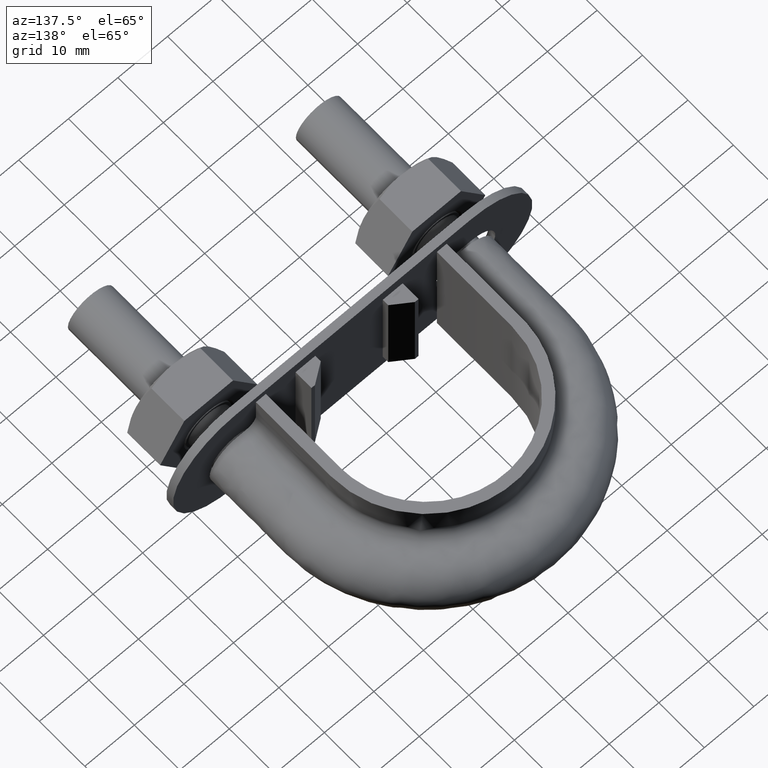
[diagram: clean part render]
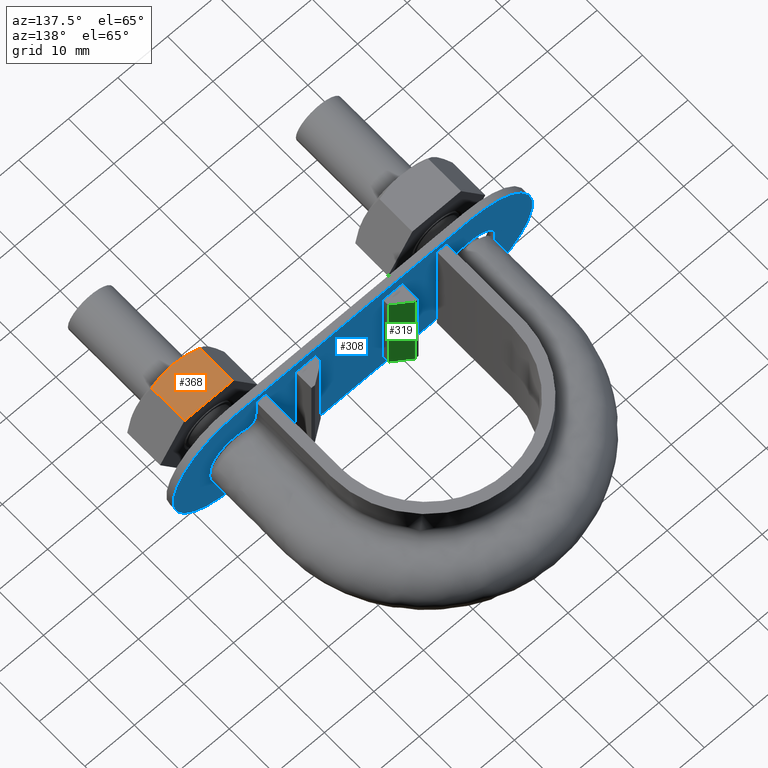
[diagram: same view with three faces highlighted in distinct colors, each labeled with its STEP entity id]
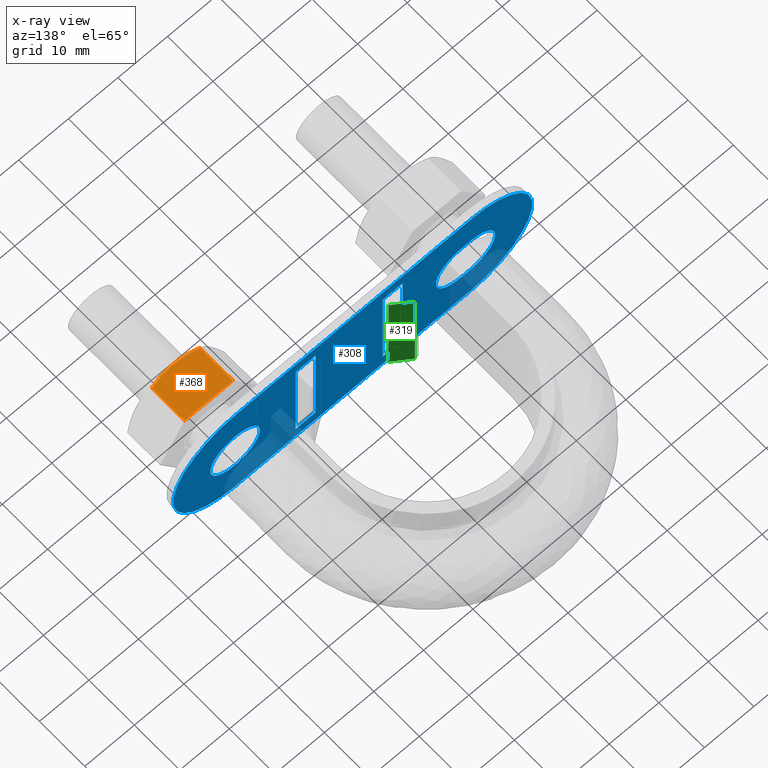
[diagram: x-ray of the same camera — body ghosted, the three highlighted faces saturated]
A machine part, auxiliary view with three faces highlighted in distinct colors.
The next image is the same camera in x-ray (body ghosted, the three faces saturated) — at least one of them is partly hidden behind the body in this view.
Their STEP definitions:

[orange] entity #368 — the highlighted planar face has unit normal (-0, 0, -1).
#368 = ADVANCED_FACE( '', ( #611 ), #612, .F. );
#611 = FACE_OUTER_BOUND( '', #1689, .T. );
#612 = PLANE( '', #1690 );
#1689 = EDGE_LOOP( '', ( #2445, #2446, #2447, #2448, #2449 ) );
#1690 = AXIS2_PLACEMENT_3D( '', #2450, #2451, #2452 );
#2445 = ORIENTED_EDGE( '', *, *, #2744, .F. );
#2446 = ORIENTED_EDGE( '', *, *, #2700, .F. );
#2447 = ORIENTED_EDGE( '', *, *, #2745, .F. );
#2448 = ORIENTED_EDGE( '', *, *, #2717, .F. );
#2449 = ORIENTED_EDGE( '', *, *, #2727, .F. );
#2450 = CARTESIAN_POINT( '', ( 18.0925227125984, 26.0000000000000, 8.50000000040994 ) );
#2451 = DIRECTION( '', ( -8.35309044156739E-011, 3.06151588476053E-016, -1.00000000000000 ) );
#2452 = DIRECTION( '', ( -1.00000000000000, 0.000000000000000, 8.35309044156739E-011 ) );
#2700 = EDGE_CURVE( '', #3053, #3056, #3057, .T. );
#2717 = EDGE_CURVE( '', #3086, #3088, #3089, .T. );
#2727 = EDGE_CURVE( '', #3105, #3086, #3107, .F. );
#2744 = EDGE_CURVE( '', #3056, #3105, #3132, .T. );
#2745 = EDGE_CURVE( '', #3088, #3053, #3133, .T. );
#3053 = VERTEX_POINT( '', #3779 );
#3056 = VERTEX_POINT( '', #3782 );
#3057 = B_SPLINE_CURVE_WITH_KNOTS( '', 3, ( #3783, #3784, #3785, #3786, #3787, #3788 ), .UNSPECIFIED., .F., .F., ( 4, 2, 4 ), ( 8.44152876808032E-017, 0.00246745482903600, 0.00493490965807192 ), .UNSPECIFIED. );
#3086 = VERTEX_POINT( '', #3841 );
#3088 = VERTEX_POINT( '', #3843 );
#3089 = LINE( '', #3844, #3845 );
#3105 = VERTEX_POINT( '', #3865 );
#3107 = LINE( '', #3867, #3868 );
#3132 = B_SPLINE_CURVE_WITH_KNOTS( '', 3, ( #3921, #3922, #3923, #3924, #3925, #3926 ), .UNSPECIFIED., .F., .F., ( 4, 2, 4 ), ( 6.93889390390723E-018, 0.00246745482903605, 0.00493490965807209 ), .UNSPECIFIED. );
#3133 = LINE( '', #3927, #3928 );
#3779 = CARTESIAN_POINT( '', ( 27.8774993600128, 18.7505553499468, 8.49999999959259 ) );
#3782 = CARTESIAN_POINT( '', ( 23.0000000007100, 18.0000000000003, 8.50000000000001 ) );
#3783 = CARTESIAN_POINT( '', ( 27.8774993600127, 18.7505553499468, 8.49999999959259 ) );
#3784 = CARTESIAN_POINT( '', ( 27.0805717073871, 18.5215585493659, 8.49999999965916 ) );
#3785 = CARTESIAN_POINT( '', ( 26.2774431763727, 18.3328582843709, 8.49999999972624 ) );
#3786 = CARTESIAN_POINT( '', ( 24.6533062483956, 18.0716504305293, 8.49999999986191 ) );
#3787 = CARTESIAN_POINT( '', ( 23.8321659509007, 18.0000000000003, 8.49999999993050 ) );
#3788 = CARTESIAN_POINT( '', ( 23.0000000007100, 18.0000000000003, 8.50000000000001 ) );
#3841 = CARTESIAN_POINT( '', ( 18.1225006414071, 26.0000000000000, 8.50000000040744 ) );
#3843 = CARTESIAN_POINT( '', ( 27.8774993600129, 26.0000000000000, 8.49999999959259 ) );
#3844 = CARTESIAN_POINT( '', ( 13.2000000007104, 26.0000000000000, 8.50000000081862 ) );
#3845 = VECTOR( '', #4230, 1000.00000000000 );
#3865 = CARTESIAN_POINT( '', ( 18.1225006414071, 18.7505553499468, 8.50000000040744 ) );
#3867 = CARTESIAN_POINT( '', ( 18.1225006414071, 26.0000000000000, 8.50000000040744 ) );
#3868 = VECTOR( '', #4250, 1000.00000000000 );
#3921 = CARTESIAN_POINT( '', ( 23.0000000007100, 18.0000000000003, 8.50000000000001 ) );
#3922 = CARTESIAN_POINT( '', ( 22.1678340505193, 18.0000000000003, 8.50000000006952 ) );
#3923 = CARTESIAN_POINT( '', ( 21.3466937530244, 18.0716504305293, 8.50000000013812 ) );
#3924 = CARTESIAN_POINT( '', ( 19.7225568250472, 18.3328582843710, 8.50000000027378 ) );
#3925 = CARTESIAN_POINT( '', ( 18.9194282940329, 18.5215585493659, 8.50000000034086 ) );
#3926 = CARTESIAN_POINT( '', ( 18.1225006414073, 18.7505553499468, 8.50000000040743 ) );
#3927 = CARTESIAN_POINT( '', ( 27.8774993600129, 26.0000000000000, 8.49999999959259 ) );
#3928 = VECTOR( '', #4278, 1000.00000000000 );
#4230 = DIRECTION( '', ( 1.00000000000000, -2.44921270738902E-016, -8.35309044156739E-011 ) );
#4250 = DIRECTION( '', ( -2.44921270764475E-016, -1.00000000000000, -3.06151588455595E-016 ) );
#4278 = DIRECTION( '', ( -2.44921270764475E-016, -1.00000000000000, -3.06151588455595E-016 ) );

[blue] entity #308 — the highlighted planar face has unit normal (0, 1, -0).
#308 = ADVANCED_FACE( '', ( #475, #476, #477, #478, #479 ), #480, .T. );
#475 = FACE_OUTER_BOUND( '', #1553, .T. );
#476 = FACE_BOUND( '', #1554, .T. );
#477 = FACE_BOUND( '', #1555, .T. );
#478 = FACE_BOUND( '', #1556, .T. );
#479 = FACE_BOUND( '', #1557, .T. );
#480 = PLANE( '', #1558 );
#1553 = EDGE_LOOP( '', ( #1992, #1993, #1994, #1995 ) );
#1554 = EDGE_LOOP( '', ( #1996, #1997, #1998, #1999 ) );
#1555 = EDGE_LOOP( '', ( #2000 ) );
#1556 = EDGE_LOOP( '', ( #2001, #2002, #2003, #2004 ) );
#1557 = EDGE_LOOP( '', ( #2005, #2006, #2007, #2008 ) );
#1558 = AXIS2_PLACEMENT_3D( '', #2009, #2010, #2011 );
#1992 = ORIENTED_EDGE( '', *, *, #2603, .T. );
#1993 = ORIENTED_EDGE( '', *, *, #2582, .T. );
#1994 = ORIENTED_EDGE( '', *, *, #2602, .T. );
#1995 = ORIENTED_EDGE( '', *, *, #2604, .T. );
#1996 = ORIENTED_EDGE( '', *, *, #2605, .T. );
#1997 = ORIENTED_EDGE( '', *, *, #2606, .T. );
#1998 = ORIENTED_EDGE( '', *, *, #2607, .F. );
#1999 = ORIENTED_EDGE( '', *, *, #2608, .F. );
#2000 = ORIENTED_EDGE( '', *, *, #2609, .F. );
#2001 = ORIENTED_EDGE( '', *, *, #2610, .F. );
#2002 = ORIENTED_EDGE( '', *, *, #2611, .F. );
#2003 = ORIENTED_EDGE( '', *, *, #2612, .F. );
#2004 = ORIENTED_EDGE( '', *, *, #2613, .F. );
#2005 = ORIENTED_EDGE( '', *, *, #2614, .F. );
#2006 = ORIENTED_EDGE( '', *, *, #2615, .T. );
#2007 = ORIENTED_EDGE( '', *, *, #2616, .T. );
#2008 = ORIENTED_EDGE( '', *, *, #2617, .F. );
#2009 = CARTESIAN_POINT( '', ( -24.5000000000000, 31.7999999999996, 2.04651491268691E-009 ) );
#2010 = DIRECTION( '', ( 2.67122035836178E-028, 1.00000000000000, -1.57436294250947E-014 ) );
#2011 = DIRECTION( '', ( 1.00000000000000, 0.000000000000000, 1.69669920844552E-014 ) );
#2582 = EDGE_CURVE( '', #2863, #2864, #2865, .T. );
#2602 = EDGE_CURVE( '', #2864, #2892, #2894, .T. );
#2603 = EDGE_CURVE( '', #2895, #2863, #2896, .T. );
#2604 = EDGE_CURVE( '', #2892, #2895, #2897, .T. );
#2605 = EDGE_CURVE( '', #2898, #2899, #2900, .F. );
#2606 = EDGE_CURVE( '', #2899, #2901, #2902, .F. );
#2607 = EDGE_CURVE( '', #2903, #2901, #2904, .T. );
#2608 = EDGE_CURVE( '', #2898, #2903, #2905, .F. );
#2609 = EDGE_CURVE( '', #2906, #2906, #2907, .T. );
#2610 = EDGE_CURVE( '', #2908, #2909, #2910, .T. );
#2611 = EDGE_CURVE( '', #2911, #2908, #2912, .F. );
#2612 = EDGE_CURVE( '', #2913, #2911, #2914, .T. );
#2613 = EDGE_CURVE( '', #2909, #2913, #2915, .F. );
#2614 = EDGE_CURVE( '', #2916, #2917, #2918, .F. );
#2615 = EDGE_CURVE( '', #2916, #2919, #2920, .T. );
#2616 = EDGE_CURVE( '', #2919, #2921, #2922, .F. );
#2617 = EDGE_CURVE( '', #2917, #2921, #2923, .F. );
#2863 = VERTEX_POINT( '', #3453 );
#2864 = VERTEX_POINT( '', #3454 );
#2865 = LINE( '', #3455, #3456 );
#2892 = VERTEX_POINT( '', #3501 );
#2894 = CIRCLE( '', #3504, 12.5000000000000 );
#2895 = VERTEX_POINT( '', #3505 );
#2896 = CIRCLE( '', #3506, 12.5000000000000 );
#2897 = LINE( '', #3507, #3508 );
#2898 = VERTEX_POINT( '', #3509 );
#2899 = VERTEX_POINT( '', #3510 );
#2900 = LINE( '', #3511, #3512 );
#2901 = VERTEX_POINT( '', #3513 );
#2902 = LINE( '', #3514, #3515 );
#2903 = VERTEX_POINT( '', #3516 );
#2904 = LINE( '', #3517, #3518 );
#2905 = LINE( '', #3519, #3520 );
#2906 = VERTEX_POINT( '', #3521 );
#2907 = CIRCLE( '', #3522, 5.00000000000000 );
#2908 = VERTEX_POINT( '', #3523 );
#2909 = VERTEX_POINT( '', #3524 );
#2910 = CIRCLE( '', #3525, 5.00000000000000 );
#2911 = VERTEX_POINT( '', #3526 );
#2912 = LINE( '', #3527, #3528 );
#2913 = VERTEX_POINT( '', #3529 );
#2914 = CIRCLE( '', #3530, 5.00000000000000 );
#2915 = LINE( '', #3531, #3532 );
#2916 = VERTEX_POINT( '', #3533 );
#2917 = VERTEX_POINT( '', #3534 );
#2918 = LINE( '', #3535, #3536 );
#2919 = VERTEX_POINT( '', #3537 );
#2920 = LINE( '', #3538, #3539 );
#2921 = VERTEX_POINT( '', #3540 );
#2922 = LINE( '', #3541, #3542 );
#2923 = LINE( '', #3543, #3544 );
#3453 = CARTESIAN_POINT( '', ( -24.4999999994779, 31.7999999999998, 12.5000000020465 ) );
#3454 = CARTESIAN_POINT( '', ( 23.0000000005221, 31.7999999999998, 12.5000000000626 ) );
#3455 = CARTESIAN_POINT( '', ( -24.5000000000000, 31.7999999999998, 12.5000000020465 ) );
#3456 = VECTOR( '', #4036, 1000.00000000000 );
#3501 = CARTESIAN_POINT( '', ( 22.9999999989559, 31.7999999999994, -12.5000000019212 ) );
#3504 = AXIS2_PLACEMENT_3D( '', #4056, #4057, #4058 );
#3505 = CARTESIAN_POINT( '', ( -24.5000000010441, 31.7999999999994, -12.4999999979535 ) );
#3506 = AXIS2_PLACEMENT_3D( '', #4059, #4060, #4061 );
#3507 = CARTESIAN_POINT( '', ( -24.5000000010441, 31.7999999999994, -12.4999999979535 ) );
#3508 = VECTOR( '', #4062, 1000.00000000000 );
#3509 = CARTESIAN_POINT( '', ( -10.8000000008352, 31.7999999999994, -9.99999999909785 ) );
#3510 = CARTESIAN_POINT( '', ( -6.80000000083529, 31.7999999999994, -9.99999999943198 ) );
#3511 = CARTESIAN_POINT( '', ( -24.5000000008353, 31.7999999999994, -9.99999999795348 ) );
#3512 = VECTOR( '', #4063, 1000.00000000000 );
#3513 = CARTESIAN_POINT( '', ( -6.79999999916468, 31.7999999999998, 10.0000000005680 ) );
#3514 = CARTESIAN_POINT( '', ( -6.79999999999998, 31.7999999999996, 5.68020689246854E-010 ) );
#3515 = VECTOR( '', #4064, 1000.00000000000 );
#3516 = CARTESIAN_POINT( '', ( -10.7999999991646, 31.7999999999998, 10.0000000009022 ) );
#3517 = CARTESIAN_POINT( '', ( -10.7999999991647, 31.7999999999998, 10.0000000009022 ) );
#3518 = VECTOR( '', #4065, 1000.00000000000 );
#3519 = CARTESIAN_POINT( '', ( -10.8000000008352, 31.7999999999994, -9.99999999909785 ) );
#3520 = VECTOR( '', #4066, 1000.00000000000 );
#3521 = CARTESIAN_POINT( '', ( 23.0000000000000, 31.7999999999997, 4.99999999807880 ) );
#3522 = AXIS2_PLACEMENT_3D( '', #4067, #4068, #4069 );
#3523 = CARTESIAN_POINT( '', ( -24.5000000004176, 31.7999999999995, -4.99999999795348 ) );
#3524 = CARTESIAN_POINT( '', ( -24.4999999997912, 31.7999999999997, 5.00000000196299 ) );
#3525 = AXIS2_PLACEMENT_3D( '', #4070, #4071, #4072 );
#3526 = CARTESIAN_POINT( '', ( -22.5000000004176, 31.7999999999995, -4.99999999812054 ) );
#3527 = CARTESIAN_POINT( '', ( -24.5000000004176, 31.7999999999995, -4.99999999795348 ) );
#3528 = VECTOR( '', #4073, 1000.00000000000 );
#3529 = CARTESIAN_POINT( '', ( -22.4999999997912, 31.7999999999997, 5.00000000187946 ) );
#3530 = AXIS2_PLACEMENT_3D( '', #4074, #4075, #4076 );
#3531 = CARTESIAN_POINT( '', ( -22.4999999995823, 31.7999999999997, 5.00000000187946 ) );
#3532 = VECTOR( '', #4077, 1000.00000000000 );
#3533 = CARTESIAN_POINT( '', ( 6.79999999916470, 31.7999999999994, -10.0000000009021 ) );
#3534 = CARTESIAN_POINT( '', ( 6.80000000083531, 31.7999999999998, 9.99999999909788 ) );
#3535 = CARTESIAN_POINT( '', ( 6.79999999916470, 31.7999999999994, -10.0000000005680 ) );
#3536 = VECTOR( '', #4078, 1000.00000000000 );
#3537 = CARTESIAN_POINT( '', ( 10.7999999991647, 31.7999999999994, -10.0000000009021 ) );
#3538 = CARTESIAN_POINT( '', ( -24.5000000000000, 31.7999999999994, -10.0000000009021 ) );
#3539 = VECTOR( '', #4079, 1000.00000000000 );
#3540 = CARTESIAN_POINT( '', ( 10.8000000008353, 31.7999999999998, 9.99999999909788 ) );
#3541 = CARTESIAN_POINT( '', ( 10.8000000000000, 31.7999999999996, -9.02120459484498E-010 ) );
#3542 = VECTOR( '', #4080, 1000.00000000000 );
#3543 = CARTESIAN_POINT( '', ( 10.8000000008353, 31.7999999999998, 9.99999999909788 ) );
#3544 = VECTOR( '', #4081, 1000.00000000000 );
#4036 = DIRECTION( '', ( 1.00000000000000, -2.67122035856882E-028, -1.31507931366257E-024 ) );
#4056 = CARTESIAN_POINT( '', ( 23.0000000000001, 31.7999999999996, -1.92119694082915E-009 ) );
#4057 = DIRECTION( '', ( 2.67122035836178E-028, 1.00000000000000, -1.57436294250947E-014 ) );
#4058 = DIRECTION( '', ( 0.000000000000000, 1.57436294250947E-014, 1.00000000000000 ) );
#4059 = CARTESIAN_POINT( '', ( -24.5000000000000, 31.7999999999996, 2.04651491268691E-009 ) );
#4060 = DIRECTION( '', ( 2.67122035836178E-028, 1.00000000000000, -1.57436294250947E-014 ) );
#4061 = DIRECTION( '', ( 0.000000000000000, 1.57436294250947E-014, 1.00000000000000 ) );
#4062 = DIRECTION( '', ( -1.00000000000000, 1.31534585275162E-024, 8.35308489044844E-011 ) );
#4063 = DIRECTION( '', ( -1.00000000000000, 1.31534585275162E-024, 8.35308489044844E-011 ) );
#4064 = DIRECTION( '', ( -8.35307470870087E-011, -1.57436294250947E-014, -1.00000000000000 ) );
#4065 = DIRECTION( '', ( 1.00000000000000, -1.31534585275162E-024, -8.35308489044844E-011 ) );
#4066 = DIRECTION( '', ( -8.35307470870087E-011, -1.57436294250947E-014, -1.00000000000000 ) );
#4067 = CARTESIAN_POINT( '', ( 23.0000000000000, 31.7999999999996, -1.92119867555262E-009 ) );
#4068 = DIRECTION( '', ( 2.67122035836178E-028, 1.00000000000000, -1.57436294250947E-014 ) );
#4069 = DIRECTION( '', ( 0.000000000000000, 1.57436294250947E-014, 1.00000000000000 ) );
#4070 = CARTESIAN_POINT( '', ( -24.5000000000000, 31.7999999999996, 2.04651664741039E-009 ) );
#4071 = DIRECTION( '', ( 2.67122035836178E-028, 1.00000000000000, -1.57436294250947E-014 ) );
#4072 = DIRECTION( '', ( 0.000000000000000, 1.57436294250947E-014, 1.00000000000000 ) );
#4073 = DIRECTION( '', ( 1.00000000000000, -1.31534585275162E-024, -8.35308489044844E-011 ) );
#4074 = CARTESIAN_POINT( '', ( -22.5000000000000, 31.7999999999996, 1.87945494960142E-009 ) );
#4075 = DIRECTION( '', ( 2.67122035836178E-028, 1.00000000000000, -1.57436294250947E-014 ) );
#4076 = DIRECTION( '', ( 0.000000000000000, 1.57436294250947E-014, 1.00000000000000 ) );
#4077 = DIRECTION( '', ( -1.00000000000000, 2.67122035856882E-028, 1.31507931366257E-024 ) );
#4078 = DIRECTION( '', ( -8.35307470870087E-011, -1.57436294250947E-014, -1.00000000000000 ) );
#4079 = DIRECTION( '', ( 1.00000000000000, -2.67122035857174E-028, -1.33363282513029E-024 ) );
#4080 = DIRECTION( '', ( -8.35307470870087E-011, -1.57436294250947E-014, -1.00000000000000 ) );
#4081 = DIRECTION( '', ( -1.00000000000000, 2.67122035857174E-028, 1.33363282513029E-024 ) );

[green] entity #319 — the highlighted planar face has unit normal (0.5736, 0.8192, -0).
#319 = ADVANCED_FACE( '', ( #501 ), #502, .T. );
#501 = FACE_OUTER_BOUND( '', #1579, .T. );
#502 = PLANE( '', #1580 );
#1579 = EDGE_LOOP( '', ( #2085, #2086, #2087, #2088 ) );
#1580 = AXIS2_PLACEMENT_3D( '', #2089, #2090, #2091 );
#2085 = ORIENTED_EDGE( '', *, *, #2638, .F. );
#2086 = ORIENTED_EDGE( '', *, *, #2639, .F. );
#2087 = ORIENTED_EDGE( '', *, *, #2640, .T. );
#2088 = ORIENTED_EDGE( '', *, *, #2633, .T. );
#2089 = CARTESIAN_POINT( '', ( -6.80000000083530, 32.9999999999997, -9.99999999943200 ) );
#2090 = DIRECTION( '', ( 0.573576436351032, 0.819152044289002, -4.79244923923676E-011 ) );
#2091 = DIRECTION( '', ( -8.35538026932430E-011, 0.000000000000000, -1.00000000000000 ) );
#2633 = EDGE_CURVE( '', #2947, #2944, #2948, .T. );
#2638 = EDGE_CURVE( '', #2953, #2944, #2955, .F. );
#2639 = EDGE_CURVE( '', #2956, #2953, #2957, .T. );
#2640 = EDGE_CURVE( '', #2956, #2947, #2958, .T. );
#2944 = VERTEX_POINT( '', #3579 );
#2947 = VERTEX_POINT( '', #3583 );
#2948 = LINE( '', #3584, #3585 );
#2953 = VERTEX_POINT( '', #3593 );
#2955 = LINE( '', #3596, #3597 );
#2956 = VERTEX_POINT( '', #3598 );
#2957 = LINE( '', #3599, #3600 );
#2958 = LINE( '', #3601, #3602 );
#3579 = CARTESIAN_POINT( '', ( -10.0847404146717, 35.3000000000000, 10.0000000008424 ) );
#3583 = CARTESIAN_POINT( '', ( -10.0847404163423, 35.2999999999997, -9.99999999915766 ) );
#3584 = CARTESIAN_POINT( '', ( -10.0847404163423, 35.2999999999997, -9.99999999915766 ) );
#3585 = VECTOR( '', #4097, 1000.00000000000 );
#3593 = CARTESIAN_POINT( '', ( -6.79999999916468, 33.0000000000000, 10.0000000005680 ) );
#3596 = CARTESIAN_POINT( '', ( -10.5646867997199, 35.6360620767473, 10.0000000008824 ) );
#3597 = VECTOR( '', #4102, 1000.00000000000 );
#3598 = CARTESIAN_POINT( '', ( -6.80000000083529, 32.9999999999997, -9.99999999943200 ) );
#3599 = CARTESIAN_POINT( '', ( -6.80000000083529, 32.9999999999997, -9.99999999943200 ) );
#3600 = VECTOR( '', #4103, 1000.00000000000 );
#3601 = CARTESIAN_POINT( '', ( -6.80000000083530, 32.9999999999997, -9.99999999943200 ) );
#3602 = VECTOR( '', #4104, 1000.00000000000 );
#4097 = DIRECTION( '', ( 8.35307470870108E-011, 1.61437092818408E-014, 1.00000000000000 ) );
#4102 = DIRECTION( '', ( 0.819152044289002, -0.573576436351032, -6.84153080661211E-011 ) );
#4103 = DIRECTION( '', ( 8.35307470870087E-011, 1.61437092832774E-014, 1.00000000000000 ) );
#4104 = DIRECTION( '', ( -0.819152044289002, 0.573576436351032, 6.84153080661211E-011 ) );